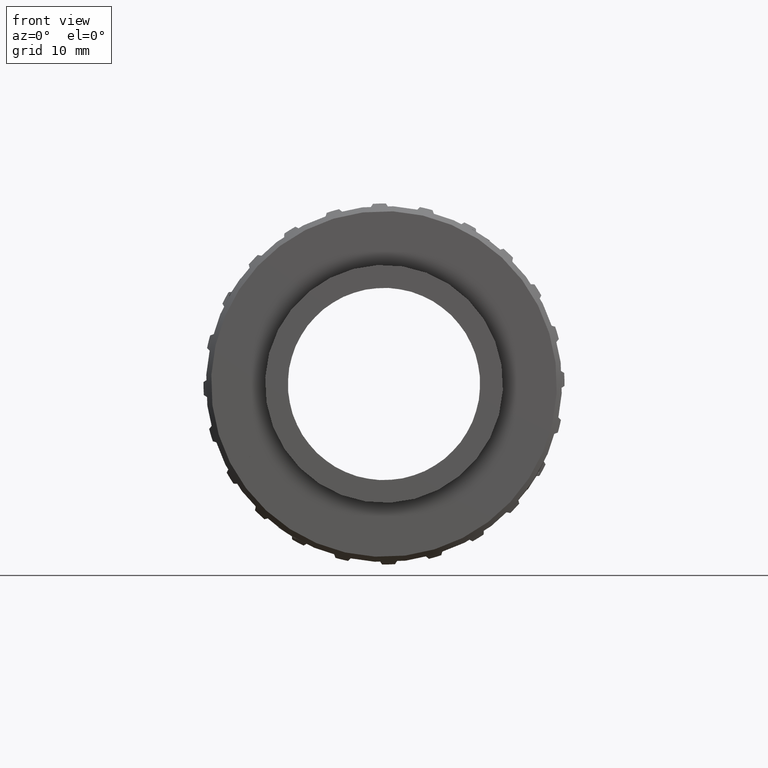
[diagram: clean part render]
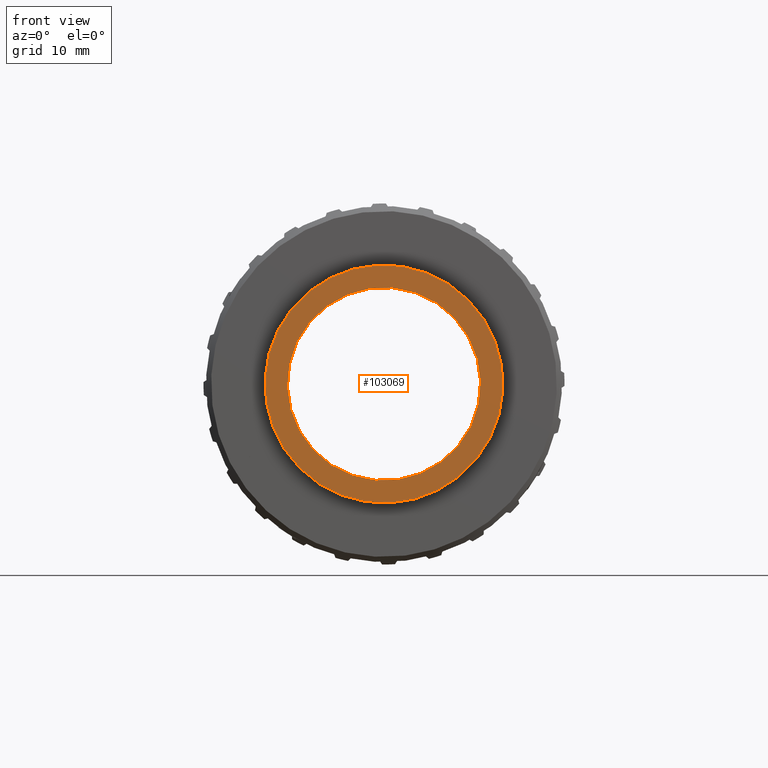
[diagram: same view with one face highlighted and labeled with its STEP entity id]
A machine part, front view. The second image highlights one B-rep face of the part: STEP entity #103069.
In plain terms, the highlighted planar face has unit normal (0, 1, 0).
Its self-contained STEP definition (entity closure, byte-faithful):
#1349 = CIRCLE ( 'NONE', #73446, 11.70000000000000500 ) ;
#3299 = FACE_OUTER_BOUND ( 'NONE', #34899, .T. ) ;
#6869 = DIRECTION ( 'NONE',  ( 0.0000000000000000000, 0.0000000000000000000, 1.000000000000000000 ) ) ;
#9830 = VERTEX_POINT ( 'NONE', #104347 ) ;
#11491 = DIRECTION ( 'NONE',  ( -0.0000000000000000000, 1.000000000000000000, 0.0000000000000000000 ) ) ;
#12197 = DIRECTION ( 'NONE',  ( 0.0000000000000000000, 0.0000000000000000000, 1.000000000000000000 ) ) ;
#12262 = EDGE_CURVE ( 'NONE', #9830, #26401, #1349, .T. ) ;
#15060 = FACE_BOUND ( 'NONE', #90249, .T. ) ;
#18799 = DIRECTION ( 'NONE',  ( 0.0000000000000000000, 0.0000000000000000000, 1.000000000000000000 ) ) ;
#25200 = DIRECTION ( 'NONE',  ( 0.0000000000000000000, 0.0000000000000000000, 1.000000000000000000 ) ) ;
#26401 = VERTEX_POINT ( 'NONE', #99069 ) ;
#28098 = CARTESIAN_POINT ( 'NONE',  ( 1.163414459189986500E-015, -14.79999999999999400, -9.500000000000007100 ) ) ;
#29234 = CIRCLE ( 'NONE', #67382, 11.70000000000000500 ) ;
#34899 = EDGE_LOOP ( 'NONE', ( #66853, #80222 ) ) ;
#46800 = CIRCLE ( 'NONE', #89843, 9.500000000000007100 ) ;
#48437 = VERTEX_POINT ( 'NONE', #28098 ) ;
#50986 = ORIENTED_EDGE ( 'NONE', *, *, #62046, .T. ) ;
#54811 = DIRECTION ( 'NONE',  ( -0.0000000000000000000, 1.000000000000000000, -0.0000000000000000000 ) ) ;
#58402 = EDGE_CURVE ( 'NONE', #48437, #105214, #46800, .T. ) ;
#58868 = DIRECTION ( 'NONE',  ( -0.0000000000000000000, 1.000000000000000000, -0.0000000000000000000 ) ) ;
#62046 = EDGE_CURVE ( 'NONE', #105214, #48437, #64835, .T. ) ;
#62309 = CARTESIAN_POINT ( 'NONE',  ( 9.500000000000007100, -14.79999999999999700, 0.0000000000000000000 ) ) ;
#64835 = CIRCLE ( 'NONE', #94176, 9.500000000000007100 ) ;
#66853 = ORIENTED_EDGE ( 'NONE', *, *, #105746, .F. ) ;
#67382 = AXIS2_PLACEMENT_3D ( 'NONE', #85738, #70349, #18799 ) ;
#68029 = AXIS2_PLACEMENT_3D ( 'NONE', #62309, #11491, #12197 ) ;
#70349 = DIRECTION ( 'NONE',  ( -0.0000000000000000000, 1.000000000000000000, -0.0000000000000000000 ) ) ;
#73446 = AXIS2_PLACEMENT_3D ( 'NONE', #96887, #54811, #6869 ) ;
#78193 = CARTESIAN_POINT ( 'NONE',  ( 0.0000000000000000000, -14.79999999999999400, 0.0000000000000000000 ) ) ;
#78427 = PLANE ( 'NONE',  #68029 ) ;
#78560 = DIRECTION ( 'NONE',  ( -0.0000000000000000000, 1.000000000000000000, -0.0000000000000000000 ) ) ;
#80222 = ORIENTED_EDGE ( 'NONE', *, *, #12262, .F. ) ;
#85738 = CARTESIAN_POINT ( 'NONE',  ( 0.0000000000000000000, -14.79999999999999400, 0.0000000000000000000 ) ) ;
#89843 = AXIS2_PLACEMENT_3D ( 'NONE', #92883, #58868, #25200 ) ;
#90249 = EDGE_LOOP ( 'NONE', ( #50986, #93450 ) ) ;
#92239 = CARTESIAN_POINT ( 'NONE',  ( 0.0000000000000000000, -14.79999999999999400, 9.500000000000007100 ) ) ;
#92883 = CARTESIAN_POINT ( 'NONE',  ( 0.0000000000000000000, -14.79999999999999400, 0.0000000000000000000 ) ) ;
#93450 = ORIENTED_EDGE ( 'NONE', *, *, #58402, .T. ) ;
#94176 = AXIS2_PLACEMENT_3D ( 'NONE', #78193, #78560, #103769 ) ;
#96887 = CARTESIAN_POINT ( 'NONE',  ( 0.0000000000000000000, -14.79999999999999400, 0.0000000000000000000 ) ) ;
#99069 = CARTESIAN_POINT ( 'NONE',  ( 0.0000000000000000000, -14.79999999999999400, 11.70000000000000500 ) ) ;
#103069 = ADVANCED_FACE ( 'NONE', ( #3299, #15060 ), #78427, .F. ) ;
#103769 = DIRECTION ( 'NONE',  ( 0.0000000000000000000, 0.0000000000000000000, 1.000000000000000000 ) ) ;
#104347 = CARTESIAN_POINT ( 'NONE',  ( 1.432836755002403700E-015, -14.79999999999999400, -11.70000000000000500 ) ) ;
#105214 = VERTEX_POINT ( 'NONE', #92239 ) ;
#105746 = EDGE_CURVE ( 'NONE', #26401, #9830, #29234, .T. ) ;